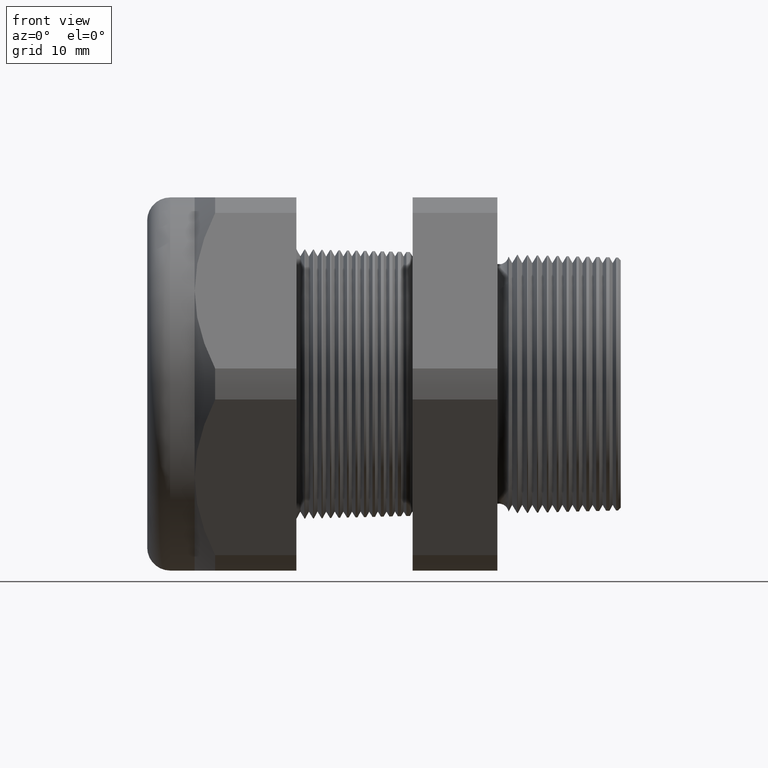
[diagram: clean part render]
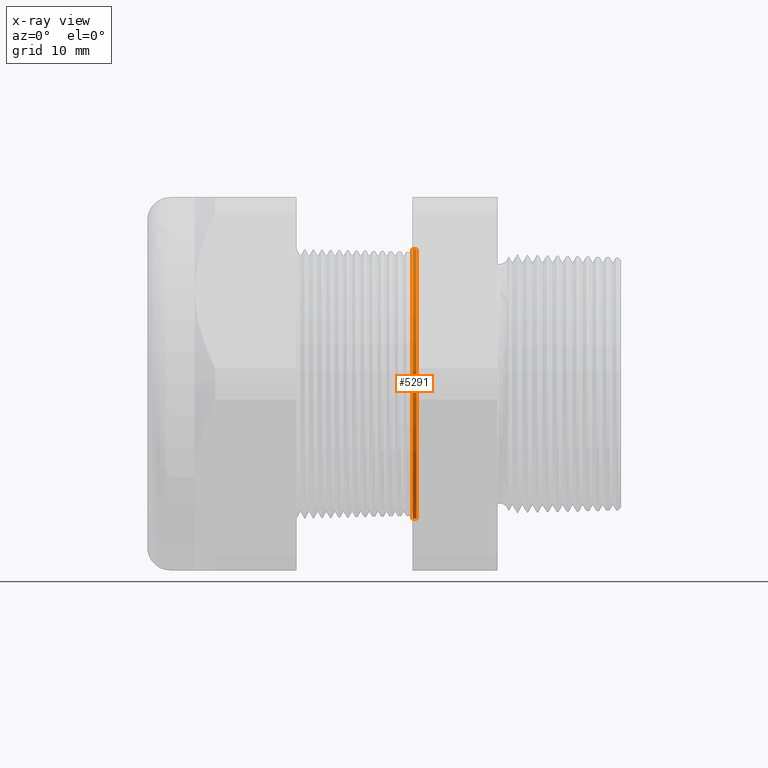
[diagram: x-ray — body ghosted, one internal face saturated and labeled with its STEP entity id]
A machine part, front view, then the same camera in x-ray: the body is ghosted and one INTERNAL B-rep face — a face not visible from any outside direction — is saturated and labeled: STEP entity #5291.
In plain terms, the highlighted conical surface has half-angle 1.5 deg.
Its self-contained STEP definition (entity closure, byte-faithful):
#75 = ORIENTED_EDGE ( 'NONE', *, *, #145, .T. ) ;
#76 = VERTEX_POINT ( 'NONE', #1131 ) ;
#145 = EDGE_CURVE ( 'NONE', #76, #5273, #1302, .T. ) ;
#1131 = CARTESIAN_POINT ( 'NONE',  ( -0.6052755905511809600, 5.751017054842014700E-017, -0.4696061802346682100 ) ) ;
#1298 = DIRECTION ( 'NONE',  ( 0.0000000000000000000, 0.0000000000000000000, 1.000000000000000000 ) ) ;
#1299 = DIRECTION ( 'NONE',  ( -1.000000000000000000, 0.0000000000000000000, 0.0000000000000000000 ) ) ;
#1300 = CARTESIAN_POINT ( 'NONE',  ( -0.6052755905511809600, 0.0000000000000000000, 0.0000000000000000000 ) ) ;
#1301 = AXIS2_PLACEMENT_3D ( 'NONE', #1300, #1299, #1298 ) ;
#1302 = CIRCLE ( 'NONE', #1301, 0.4696061802346682700 ) ;
#3937 = DIRECTION ( 'NONE',  ( 0.0000000000000000000, 0.0000000000000000000, -1.000000000000000000 ) ) ;
#3938 = DIRECTION ( 'NONE',  ( 1.000000000000000000, 0.0000000000000000000, 0.0000000000000000000 ) ) ;
#3939 = CARTESIAN_POINT ( 'NONE',  ( -0.5914573393463203900, 0.0000000000000000000, 0.0000000000000000000 ) ) ;
#3940 = AXIS2_PLACEMENT_3D ( 'NONE', #3939, #3938, #3937 ) ;
#3941 = CIRCLE ( 'NONE', #3940, 0.4692443365923945100 ) ;
#3942 = CARTESIAN_POINT ( 'NONE',  ( -0.6052755905511809600, 0.0000000000000000000, 0.4696061802346682100 ) ) ;
#3961 = DIRECTION ( 'NONE',  ( 0.0000000000000000000, 0.0000000000000000000, 1.000000000000000000 ) ) ;
#3962 = DIRECTION ( 'NONE',  ( -1.000000000000000000, 0.0000000000000000000, 0.0000000000000000000 ) ) ;
#3963 = AXIS2_PLACEMENT_3D ( 'NONE', #3971, #3962, #3961 ) ;
#3964 = CONICAL_SURFACE ( 'NONE', #3963, 0.4692443365923945100, 0.02617993877990797800 ) ;
#3965 = FACE_OUTER_BOUND ( 'NONE', #5285, .T. ) ;
#3971 = CARTESIAN_POINT ( 'NONE',  ( -0.5914573393463203900, 0.0000000000000000000, 0.0000000000000000000 ) ) ;
#3986 = CARTESIAN_POINT ( 'NONE',  ( -0.5914573393463203900, 0.0000000000000000000, -0.4692443365923945100 ) ) ;
#3987 = DIRECTION ( 'NONE',  ( -0.9996573249755573700, 3.205751595667405400E-018, -0.02617694830786618600 ) ) ;
#3988 = VECTOR ( 'NONE', #3987, 39.37007874015748100 ) ;
#3989 = CARTESIAN_POINT ( 'NONE',  ( -0.5914573393463203900, 5.746585748258992000E-017, -0.4692443365923945100 ) ) ;
#3990 = LINE ( 'NONE', #3989, #3988 ) ;
#3991 = CARTESIAN_POINT ( 'NONE',  ( -0.5914573393463203900, 5.746585748258992000E-017, 0.4692443365923945100 ) ) ;
#4004 = DIRECTION ( 'NONE',  ( -0.9996573249755573700, 0.0000000000000000000, 0.02617694830786618600 ) ) ;
#4005 = VECTOR ( 'NONE', #4004, 39.37007874015748100 ) ;
#4006 = CARTESIAN_POINT ( 'NONE',  ( -0.5914573393463203900, 0.0000000000000000000, 0.4692443365923945100 ) ) ;
#4007 = LINE ( 'NONE', #4006, #4005 ) ;
#5231 = ORIENTED_EDGE ( 'NONE', *, *, #5274, .T. ) ;
#5273 = VERTEX_POINT ( 'NONE', #3942 ) ;
#5274 = EDGE_CURVE ( 'NONE', #5277, #5280, #3941, .T. ) ;
#5277 = VERTEX_POINT ( 'NONE', #3991 ) ;
#5278 = ORIENTED_EDGE ( 'NONE', *, *, #5279, .T. ) ;
#5279 = EDGE_CURVE ( 'NONE', #5280, #76, #3990, .T. ) ;
#5280 = VERTEX_POINT ( 'NONE', #3986 ) ;
#5285 = EDGE_LOOP ( 'NONE', ( #5231, #5278, #75, #5315 ) ) ;
#5291 = ADVANCED_FACE ( 'NONE', ( #3965 ), #3964, .F. ) ;
#5304 = EDGE_CURVE ( 'NONE', #5277, #5273, #4007, .T. ) ;
#5315 = ORIENTED_EDGE ( 'NONE', *, *, #5304, .F. ) ;